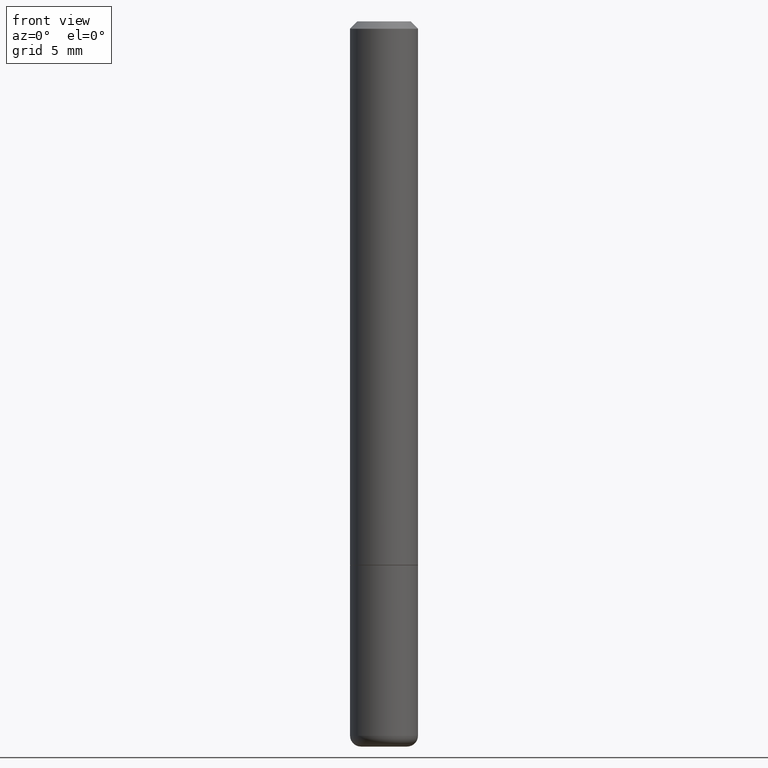
[diagram: clean part render]
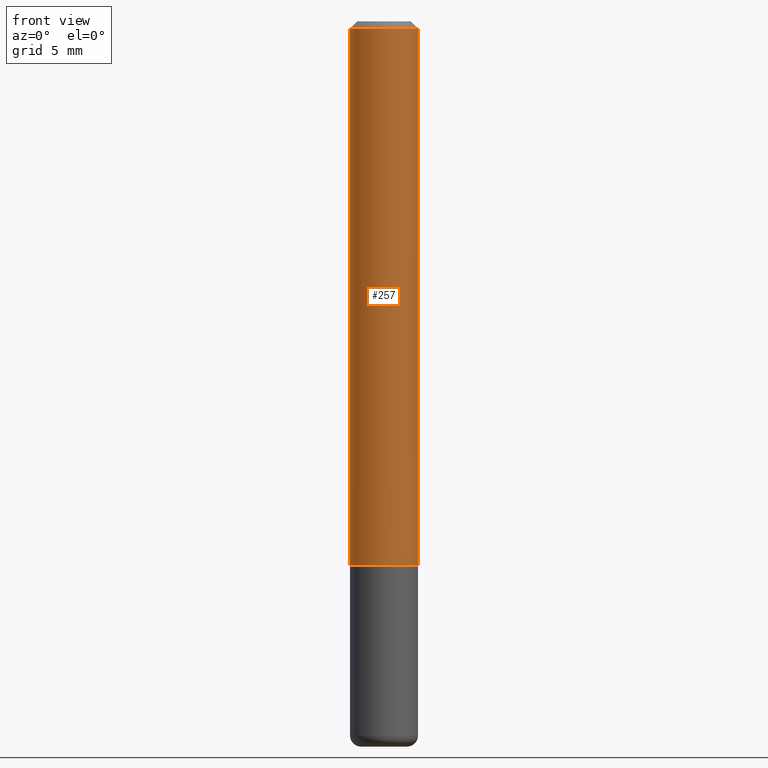
[diagram: same view with one face highlighted and labeled with its STEP entity id]
A machine part, front view. The second image highlights one B-rep face of the part: STEP entity #257.
In plain terms, the highlighted cylindrical surface (edge-blend (fillet) strip) has radius 2.3813 mm, axis along (-0, 0, 1).
Its self-contained STEP definition (entity closure, byte-faithful):
#2 = ORIENTED_EDGE ( 'NONE', *, *, #139, .F. ) ;
#18 = FACE_OUTER_BOUND ( 'NONE', #135, .T. ) ;
#24 = VERTEX_POINT ( 'NONE', #102 ) ;
#25 = CARTESIAN_POINT ( 'NONE',  ( 0.09375000000000020817, -5.888383277958964251E-15, -1.498999999999999666 ) ) ;
#60 = CARTESIAN_POINT ( 'NONE',  ( 0.000000000000000000, 0.000000000000000000, 0.000000000000000000 ) ) ;
#82 = EDGE_CURVE ( 'NONE', #409, #218, #173, .T. ) ;
#84 = VECTOR ( 'NONE', #332, 39.37007874015748143 ) ;
#96 = ORIENTED_EDGE ( 'NONE', *, *, #247, .T. ) ;
#102 = CARTESIAN_POINT ( 'NONE',  ( -0.09375000000000001388, 5.848231242562245017E-16, -0.02000000000000001776 ) ) ;
#117 = CARTESIAN_POINT ( 'NONE',  ( -0.09375000000000011102, 6.661338147750947131E-16, -4.611501647113979600E-30 ) ) ;
#135 = EDGE_LOOP ( 'NONE', ( #283, #375, #96, #2 ) ) ;
#137 = CARTESIAN_POINT ( 'NONE',  ( 3.665757740471518732E-29, -5.233730526925875170E-15, -1.498999999999999666 ) ) ;
#139 = EDGE_CURVE ( 'NONE', #24, #306, #307, .T. ) ;
#158 = EDGE_CURVE ( 'NONE', #409, #24, #248, .T. ) ;
#160 = VECTOR ( 'NONE', #334, 39.37007874015748143 ) ;
#173 = CIRCLE ( 'NONE', #229, 0.09375000000000020817 ) ;
#182 = DIRECTION ( 'NONE',  ( -2.445468806185136597E-29, 3.491481338843145583E-15, 1.000000000000000000 ) ) ;
#186 = DIRECTION ( 'NONE',  ( -2.445468806185136597E-29, 3.491481338843145583E-15, 1.000000000000000000 ) ) ;
#210 = DIRECTION ( 'NONE',  ( 1.000000000000000000, -6.982962677686265922E-15, 4.876176775795935793E-29 ) ) ;
#211 = CARTESIAN_POINT ( 'NONE',  ( -0.09375000000000020817, -1.985646262076270971E-15, -1.498999999999999666 ) ) ;
#218 = VERTEX_POINT ( 'NONE', #25 ) ;
#229 = AXIS2_PLACEMENT_3D ( 'NONE', #137, #182, #273 ) ;
#247 = EDGE_CURVE ( 'NONE', #218, #306, #340, .T. ) ;
#248 = LINE ( 'NONE', #117, #84 ) ;
#257 = ADVANCED_FACE ( 'NONE', ( #18 ), #278, .T. ) ;
#273 = DIRECTION ( 'NONE',  ( 1.000000000000000000, -6.982962677686268288E-15, 0.000000000000000000 ) ) ;
#275 = CARTESIAN_POINT ( 'NONE',  ( 4.890937612370276662E-31, -6.982962677686296539E-17, -0.02000000000000001776 ) ) ;
#278 = CYLINDRICAL_SURFACE ( 'NONE', #289, 0.09375000000000011102 ) ;
#283 = ORIENTED_EDGE ( 'NONE', *, *, #158, .F. ) ;
#289 = AXIS2_PLACEMENT_3D ( 'NONE', #60, #368, #210 ) ;
#306 = VERTEX_POINT ( 'NONE', #388 ) ;
#307 = CIRCLE ( 'NONE', #389, 0.09375000000000001388 ) ;
#332 = DIRECTION ( 'NONE',  ( -2.445468806185136877E-29, 3.491481338843145188E-15, 1.000000000000000000 ) ) ;
#334 = DIRECTION ( 'NONE',  ( -2.445468806185136877E-29, 3.491481338843145188E-15, 1.000000000000000000 ) ) ;
#340 = LINE ( 'NONE', #378, #160 ) ;
#368 = DIRECTION ( 'NONE',  ( -2.445468806185136597E-29, 3.491481338843145583E-15, 1.000000000000000000 ) ) ;
#375 = ORIENTED_EDGE ( 'NONE', *, *, #82, .T. ) ;
#378 = CARTESIAN_POINT ( 'NONE',  ( 0.09375000000000011102, -6.546527510330881944E-16, 4.571415727308695411E-30 ) ) ;
#388 = CARTESIAN_POINT ( 'NONE',  ( 0.09375000000000001388, -7.130013140679441850E-16, -0.02000000000000001776 ) ) ;
#389 = AXIS2_PLACEMENT_3D ( 'NONE', #275, #186, #402 ) ;
#402 = DIRECTION ( 'NONE',  ( 1.000000000000000000, -6.982962677686265922E-15, 0.000000000000000000 ) ) ;
#409 = VERTEX_POINT ( 'NONE', #211 ) ;